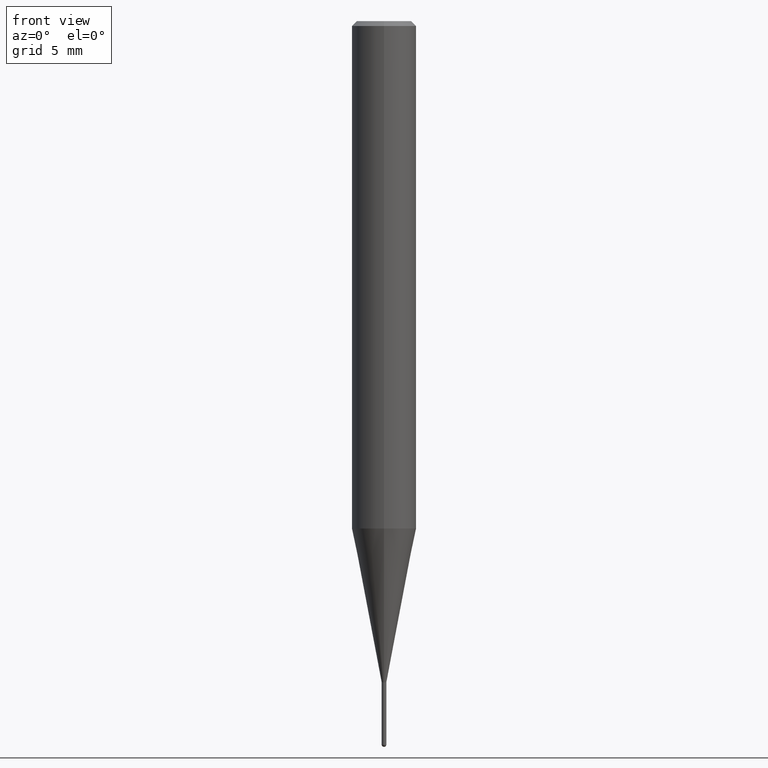
[diagram: clean part render]
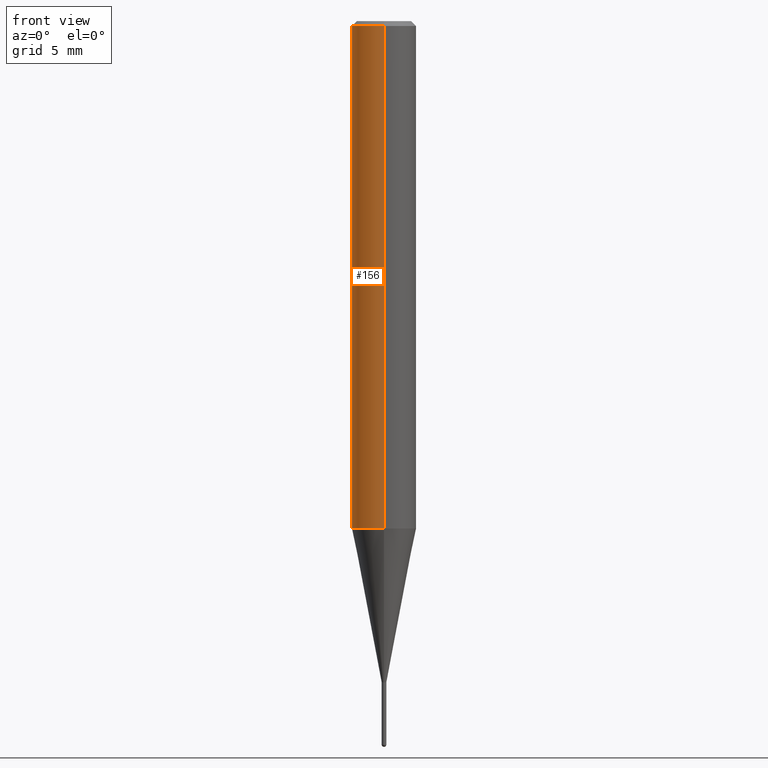
[diagram: same view with one face highlighted and labeled with its STEP entity id]
A machine part, front view. The second image highlights one B-rep face of the part: STEP entity #156.
In plain terms, the highlighted cylindrical surface (edge-blend (fillet) strip) has radius 2 mm, axis along (-0, -0, 1).
Its self-contained STEP definition (entity closure, byte-faithful):
#106=VERTEX_POINT('',#248);
#134=VERTEX_POINT('',#282);
#144=EDGE_CURVE('',#106,#146,#292,.T.);
#146=VERTEX_POINT('',#294);
#156=ADVANCED_FACE('',(#304),#305,.T.);
#196=EDGE_CURVE('',#202,#146,#352,.T.);
#202=VERTEX_POINT('',#358);
#204=EDGE_CURVE('',#134,#202,#360,.T.);
#208=EDGE_CURVE('',#106,#134,#365,.T.);
#248=CARTESIAN_POINT('',(2.44921270764475E-016,-2.0,-31.457));
#282=CARTESIAN_POINT('',(2.44921270764475E-016,-2.0,-0.300000000000001));
#292=CIRCLE('',#456,2.0);
#294=CARTESIAN_POINT('',(0.0,2.0,-31.457));
#304=FACE_OUTER_BOUND('',#473,.T.);
#305=CYLINDRICAL_SURFACE('',#474,2.0);
#352=LINE('',#531,#532);
#358=CARTESIAN_POINT('',(0.0,2.0,-0.300000000000001));
#360=CIRCLE('',#542,2.0);
#365=LINE('',#548,#549);
#456=AXIS2_PLACEMENT_3D('',#632,#633,#634);
#473=EDGE_LOOP('',(#641,#642,#643,#644));
#474=AXIS2_PLACEMENT_3D('',#645,#646,#647);
#531=CARTESIAN_POINT('',(-2.44921270764475E-016,2.0,-15.8785));
#532=VECTOR('',#716,1.0);
#542=AXIS2_PLACEMENT_3D('',#720,#721,#722);
#548=CARTESIAN_POINT('',(2.44921270764475E-016,-2.0,-15.8785));
#549=VECTOR('',#729,1.0);
#632=CARTESIAN_POINT('',(0.0,0.0,-31.457));
#633=DIRECTION('',(0.0,0.0,-1.0));
#634=DIRECTION('',(0.0,1.0,0.0));
#641=ORIENTED_EDGE('',*,*,#196,.T.);
#642=ORIENTED_EDGE('',*,*,#144,.F.);
#643=ORIENTED_EDGE('',*,*,#208,.T.);
#644=ORIENTED_EDGE('',*,*,#204,.T.);
#645=CARTESIAN_POINT('',(0.0,0.0,-15.8785));
#646=DIRECTION('',(-0.0,-0.0,1.0));
#647=DIRECTION('',(0.0,1.0,0.0));
#716=DIRECTION('',(0.0,0.0,-1.0));
#720=CARTESIAN_POINT('',(0.0,0.0,-0.300000000000001));
#721=DIRECTION('',(0.0,0.0,-1.0));
#722=DIRECTION('',(0.0,1.0,0.0));
#729=DIRECTION('',(-0.0,-0.0,1.0));